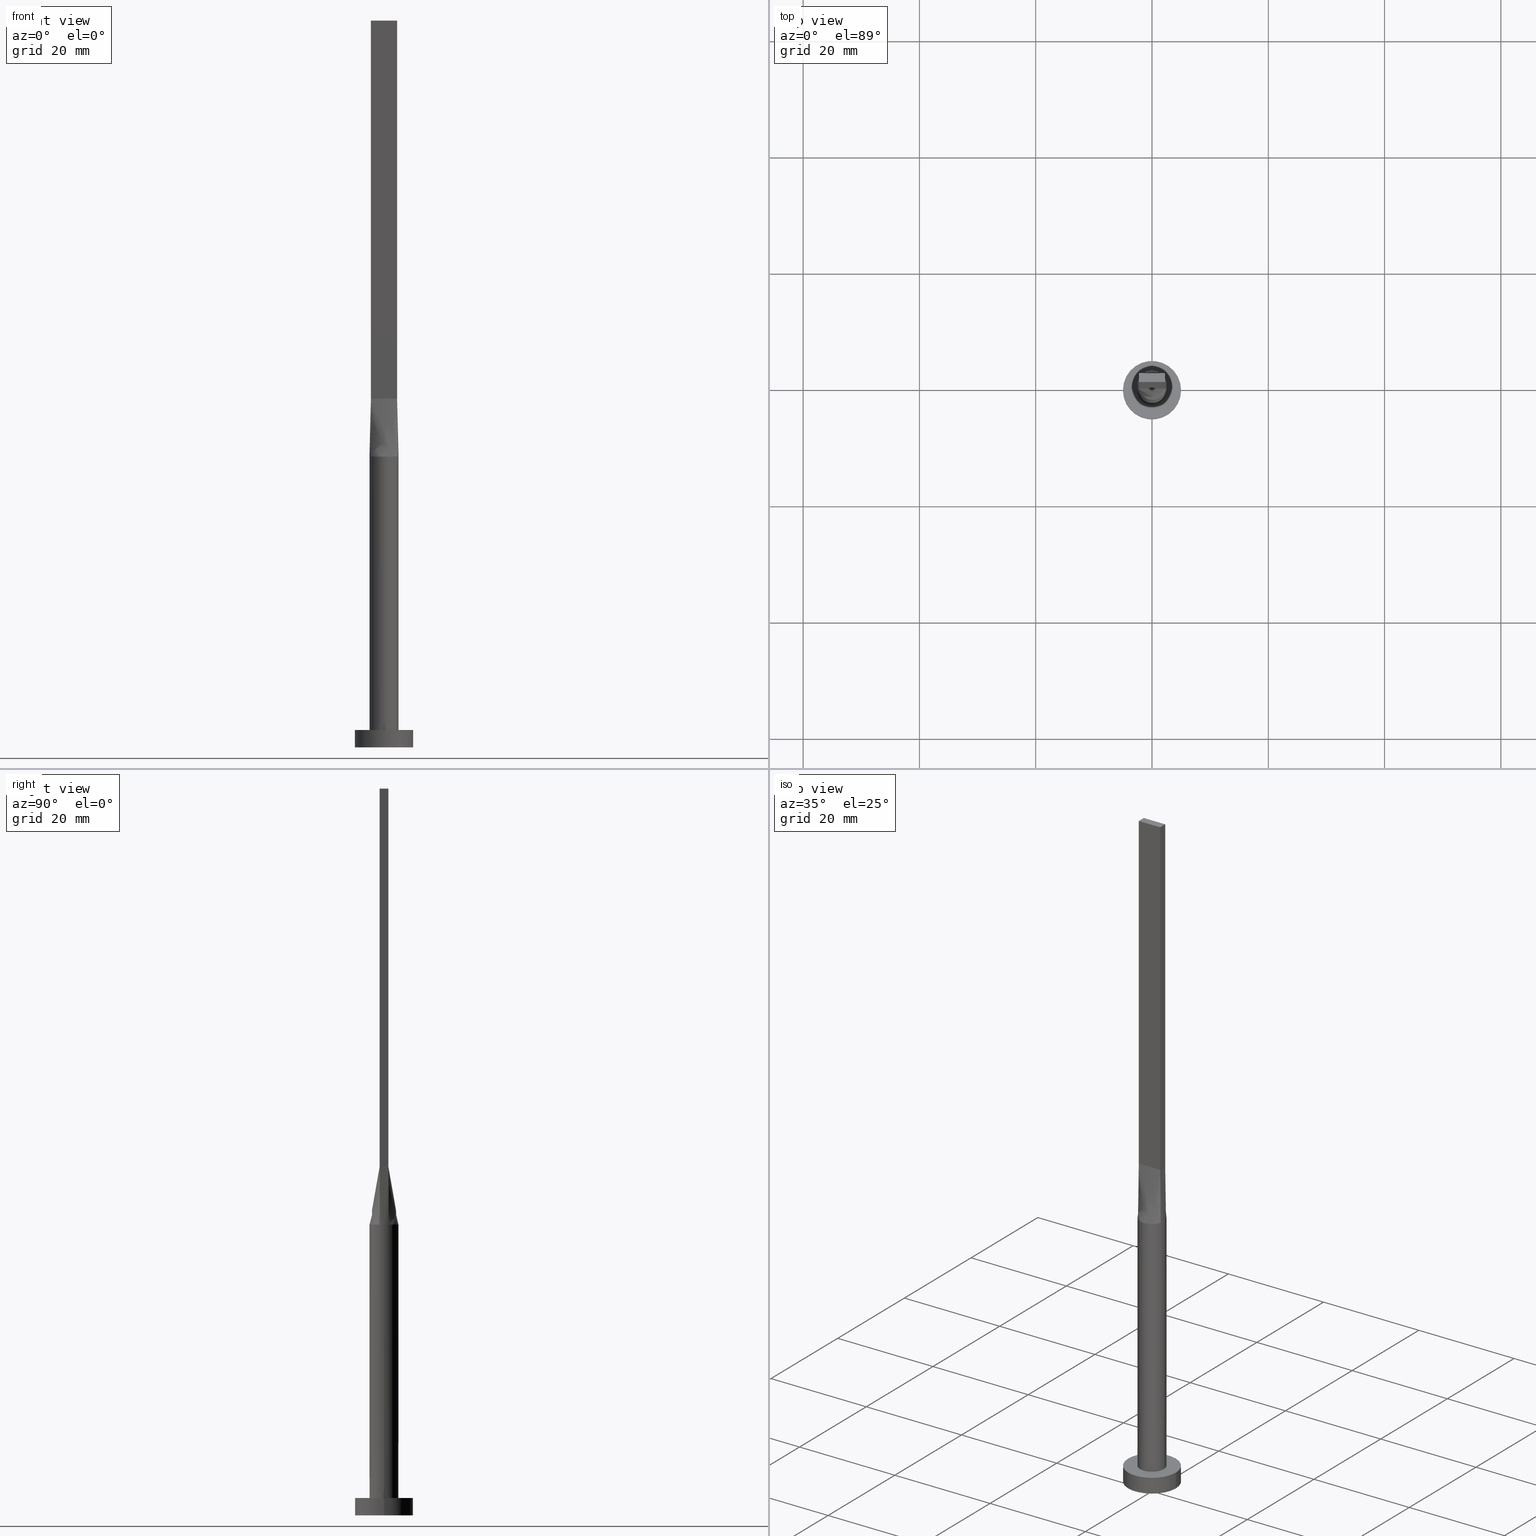
[diagram: canonical four-view strip — front | top / right | iso, engineering-drawing reading convention]
A machine part, canonical four-view strip (front | top / right | iso — engineering-drawing reading convention). The complete STEP part file that produces these views, byte-faithful:
ISO-10303-21;
HEADER;
FILE_DESCRIPTION (( 'STEP AP203' ),
    '1' );
FILE_NAME ('02ae.STEP',
    '2023-02-13T12:30:55',
    ( '' ),
    ( '' ),
    'SwSTEP 2.0',
    'SolidWorks 2019',
    '' );
FILE_SCHEMA (( 'CONFIG_CONTROL_DESIGN' ));
ENDSEC;

DATA;
#1 = CARTESIAN_POINT ( 'NONE',  ( -5.000000000000000000, 0.000000000000000000, 0.000000000000000000 ) ) ;
#2 = VERTEX_POINT ( 'NONE', #543 ) ;
#3 = EDGE_CURVE ( 'NONE', #574, #164, #257, .T. ) ;
#4 = LINE ( 'NONE', #175, #421 ) ;
#5 = APPROVAL_ROLE ( '' ) ;
#6 = ORIENTED_EDGE ( 'NONE', *, *, #256, .T. ) ;
#7 = LINE ( 'NONE', #396, #479 ) ;
#8 = CC_DESIGN_APPROVAL ( #503, ( #107 ) ) ;
#9 = PERSON_AND_ORGANIZATION ( #287, #526 ) ;
#10 = CARTESIAN_POINT ( 'NONE',  ( 2.310854122563142266, 0.7702847075210476069, 55.00000000000000711 ) ) ;
#11 = CARTESIAN_POINT ( 'NONE',  ( -2.371708245126284531, 0.7905694150420949917, 50.00000000000000000 ) ) ;
#12 = CALENDAR_DATE ( 2023, 13, 2 ) ;
#13 = CARTESIAN_POINT ( 'NONE',  ( 5.000000000000000000, 6.123233995736766282E-16, 0.000000000000000000 ) ) ;
#14 = CARTESIAN_POINT ( 'NONE',  ( 2.309208245126284087, -0.9780694150420953248, 49.99999999999999289 ) ) ;
#15 = CARTESIAN_POINT ( 'NONE',  ( 0.000000000000000000, 0.000000000000000000, 125.0000000000000000 ) ) ;
#16 = APPROVAL_STATUS ( 'not_yet_approved' ) ;
#17 = CARTESIAN_POINT ( 'NONE',  ( 0.3003163416900527238, 2.499999999999999556, 50.00000000000000711 ) ) ;
#18 = CARTESIAN_POINT ( 'NONE',  ( -2.218933079238281536, 1.174882007251999871, 50.00000000000000711 ) ) ;
#19 = CARTESIAN_POINT ( 'NONE',  ( 0.7500000000000065503, 0.7500000000000003331, 60.00000000000000000 ) ) ;
#20 = CC_DESIGN_DATE_AND_TIME_ASSIGNMENT ( #33, #535, ( #62 ) ) ;
#21 = CARTESIAN_POINT ( 'NONE',  ( 2.371708245126284531, 0.7905694150420949917, 50.00000000000000000 ) ) ;
#22 = B_SPLINE_SURFACE_WITH_KNOTS ( 'NONE', 3, 1, ( 
 ( #11, #176 ),
 ( #121, #351 ),
 ( #448, #89 ),
 ( #286, #37 ),
 ( #207, #577 ),
 ( #502, #341 ) ),
 .UNSPECIFIED., .F., .F., .F.,
 ( 4, 2, 4 ),
 ( 2, 2 ),
 ( 0.000000000000000000, 0.5000000000000000000, 1.000000000000000000 ),
 ( 0.000000000000000000, 1.000000000000000000 ),
 .UNSPECIFIED. ) ;
#23 = FACE_OUTER_BOUND ( 'NONE', #323, .T. ) ;
#24 = DIRECTION ( 'NONE',  ( -0.000000000000000000, -0.000000000000000000, -1.000000000000000000 ) ) ;
#25 = ORIENTED_EDGE ( 'NONE', *, *, #342, .T. ) ;
#26 = LINE ( 'NONE', #380, #170 ) ;
#27 = EDGE_LOOP ( 'NONE', ( #196, #340, #108, #202 ) ) ;
#28 = EDGE_CURVE ( 'NONE', #445, #2, #4, .T. ) ;
#29 = CARTESIAN_POINT ( 'NONE',  ( 2.499999999999999556, 3.110810548879990207E-17, 50.00000000000000000 ) ) ;
#30 = CARTESIAN_POINT ( 'NONE',  ( -2.310854122563142266, 0.7702847075210473848, 55.00000000000000711 ) ) ;
#31 = ORIENTED_EDGE ( 'NONE', *, *, #489, .T. ) ;
#32 = CARTESIAN_POINT ( 'NONE',  ( -2.249999999999999556, 0.7500000000000002220, 125.0000000000000000 ) ) ;
#33 = DATE_AND_TIME ( #550, #372 ) ;
#34 = VERTEX_POINT ( 'NONE', #13 ) ;
#35 = ORIENTED_EDGE ( 'NONE', *, *, #485, .T. ) ;
#36 = VECTOR ( 'NONE', #172, 1000.000000000000000 ) ;
#37 = CARTESIAN_POINT ( 'NONE',  ( -2.249999999999999556, -0.2499999999999963640, 60.00000000000000000 ) ) ;
#38 = AXIS2_PLACEMENT_3D ( 'NONE', #315, #69, #321 ) ;
#39 = ADVANCED_FACE ( 'NONE', ( #547 ), #301, .T. ) ;
#40 = ORIENTED_EDGE ( 'NONE', *, *, #305, .T. ) ;
#41 = ORIENTED_EDGE ( 'NONE', *, *, #572, .T. ) ;
#42 = DIRECTION ( 'NONE',  ( -1.000000000000000000, 0.000000000000000000, 0.000000000000000000 ) ) ;
#43 = ORIENTED_EDGE ( 'NONE', *, *, #28, .F. ) ;
#44 = DIRECTION ( 'NONE',  ( -0.01216982305197525371, -0.004056607683991732445, -0.9999177162851859979 ) ) ;
#45 = ORIENTED_EDGE ( 'NONE', *, *, #485, .F. ) ;
#46 = COORDINATED_UNIVERSAL_TIME_OFFSET ( 1, 0, .AHEAD. ) ;
#47 = SECURITY_CLASSIFICATION_LEVEL ( 'unclassified' ) ;
#48 = EDGE_CURVE ( 'NONE', #322, #169, #314, .T. ) ;
#49 = VERTEX_POINT ( 'NONE', #143 ) ;
#50 = FACE_OUTER_BOUND ( 'NONE', #385, .T. ) ;
#51 = PERSON_AND_ORGANIZATION_ROLE ( 'creator' ) ;
#52 = CALENDAR_DATE ( 2023, 13, 2 ) ;
#53 = VERTEX_POINT ( 'NONE', #527 ) ;
#54 = DIRECTION ( 'NONE',  ( 0.000000000000000000, 0.000000000000000000, 1.000000000000000000 ) ) ;
#55 = CARTESIAN_POINT ( 'NONE',  ( -0.3003163416900532234, -2.499999999999999556, 49.99999999999999289 ) ) ;
#56 = CARTESIAN_POINT ( 'NONE',  ( 1.145194483530141749, 2.241235424885160921, 50.00000000000000000 ) ) ;
#57 = VECTOR ( 'NONE', #204, 1000.000000000000114 ) ;
#58 = SECURITY_CLASSIFICATION ( '', '', #47 ) ;
#59 = AXIS2_PLACEMENT_3D ( 'NONE', #514, #263, #266 ) ;
#60 = CARTESIAN_POINT ( 'NONE',  ( 1.145194483530141083, -2.241235424885161365, 49.99999999999998579 ) ) ;
#61 = CARTESIAN_POINT ( 'NONE',  ( -2.309208245126284975, 0.9780694150420951027, 50.00000000000000711 ) ) ;
#62 = PRODUCT_DEFINITION ( 'NEZN�M�', '', #107, #353 ) ;
#63 = CARTESIAN_POINT ( 'NONE',  ( 1.145194483530141749, 2.241235424885160921, 50.00000000000000000 ) ) ;
#64 = CARTESIAN_POINT ( 'NONE',  ( 0.3003163416900518912, -2.500000000000001332, 50.00000000000000711 ) ) ;
#65 = FACE_OUTER_BOUND ( 'NONE', #218, .T. ) ;
#66 = CARTESIAN_POINT ( 'NONE',  ( 1.390086206340438890, -2.094828891646495883, 50.00000000000000711 ) ) ;
#67 = PERSON_AND_ORGANIZATION_ROLE ( 'classification_officer' ) ;
#68 = B_SPLINE_CURVE_WITH_KNOTS ( 'NONE', 3,
 ( #279, #229, #112, #116, #413, #178, #56, #554, #17, #187, #184, #368, #475, #418, #310, #18, #61, #557 ),
 .UNSPECIFIED., .F., .F.,
 ( 4, 2, 2, 2, 2, 2, 2, 2, 4 ),
 ( 0.000000000000000000, 0.1250000000000000000, 0.2500000000000000000, 0.3750000000000000000, 0.5000000000000000000, 0.6250000000000000000, 0.7500000000000000000, 0.8750000000000000000, 1.000000000000000000 ),
 .UNSPECIFIED. ) ;
#69 = DIRECTION ( 'NONE',  ( 1.000000000000000000, -2.891205793294678819E-16, 0.000000000000000000 ) ) ;
#70 = VERTEX_POINT ( 'NONE', #523 ) ;
#71 = PRODUCT_DEFINITION_SHAPE ( 'NONE', 'NONE',  #62 ) ;
#72 = CARTESIAN_POINT ( 'NONE',  ( -1.799471046981195199, 1.755719709239274229, 50.00000000000000711 ) ) ;
#73 = DIRECTION ( 'NONE',  ( -1.000000000000000000, 0.000000000000000000, 0.000000000000000000 ) ) ;
#74 = LINE ( 'NONE', #384, #84 ) ;
#75 = AXIS2_PLACEMENT_3D ( 'NONE', #408, #123, #457 ) ;
#76 = ORIENTED_EDGE ( 'NONE', *, *, #440, .T. ) ;
#77 = DIRECTION ( 'NONE',  ( 1.000000000000000000, 0.000000000000000000, 0.000000000000000000 ) ) ;
#78 = CARTESIAN_POINT ( 'NONE',  ( -2.250000000000000000, -0.7499999999999995559, 125.0000000000000000 ) ) ;
#79 =( NAMED_UNIT ( * ) PLANE_ANGLE_UNIT ( ) SI_UNIT ( $, .RADIAN. ) );
#80 = EDGE_CURVE ( 'NONE', #159, #578, #181, .T. ) ;
#81 = LINE ( 'NONE', #466, #291 ) ;
#82 = CIRCLE ( 'NONE', #407, 2.500000000000000000 ) ;
#83 = CARTESIAN_POINT ( 'NONE',  ( 2.249999999999999556, 0.7500000000000002220, 60.00000000000000711 ) ) ;
#84 = VECTOR ( 'NONE', #188, 1000.000000000000000 ) ;
#85 = EDGE_CURVE ( 'NONE', #49, #322, #444, .T. ) ;
#86 = DATE_AND_TIME ( #461, #423 ) ;
#87 = CARTESIAN_POINT ( 'NONE',  ( -2.062499999999999556, -0.7499999999999995559, 60.00000000000000711 ) ) ;
#88 = ORIENTED_EDGE ( 'NONE', *, *, #135, .F. ) ;
#89 = CARTESIAN_POINT ( 'NONE',  ( -2.249999999999999556, 0.2500000000000035527, 60.00000000000000000 ) ) ;
#90 = EDGE_CURVE ( 'NONE', #519, #320, #391, .T. ) ;
#91 = ORIENTED_EDGE ( 'NONE', *, *, #305, .F. ) ;
#92 = APPLICATION_PROTOCOL_DEFINITION ( 'international standard', 'config_control_design', 1994, #488 ) ;
#93 = ADVANCED_FACE ( 'NONE', ( #23 ), #194, .F. ) ;
#94 = CARTESIAN_POINT ( 'NONE',  ( 0.000000000000000000, 0.000000000000000000, 3.000000000000000000 ) ) ;
#95 = ORIENTED_EDGE ( 'NONE', *, *, #80, .T. ) ;
#96 = CARTESIAN_POINT ( 'NONE',  ( 2.250000000000000000, -0.7499999999999997780, 60.00000000000000711 ) ) ;
#97 = CARTESIAN_POINT ( 'NONE',  ( -0.6000386972366482663, 2.444291348568452094, 50.00000000000000000 ) ) ;
#98 = ORIENTED_EDGE ( 'NONE', *, *, #80, .F. ) ;
#99 = CARTESIAN_POINT ( 'NONE',  ( 0.000000000000000000, 0.000000000000000000, 50.00000000000000000 ) ) ;
#100 = DIRECTION ( 'NONE',  ( 0.000000000000000000, 0.000000000000000000, 1.000000000000000000 ) ) ;
#101 = CARTESIAN_POINT ( 'NONE',  ( 1.799471046981195199, -1.755719709239274229, 50.00000000000000711 ) ) ;
#102 = CARTESIAN_POINT ( 'NONE',  ( 0.000000000000000000, 0.000000000000000000, 0.000000000000000000 ) ) ;
#103 = ADVANCED_FACE ( 'NONE', ( #541 ), #546, .F. ) ;
#104 = DIRECTION ( 'NONE',  ( 0.000000000000000000, 0.000000000000000000, 1.000000000000000000 ) ) ;
#105 = ORIENTED_EDGE ( 'NONE', *, *, #90, .T. ) ;
#106 = CIRCLE ( 'NONE', #189, 2.500000000000000000 ) ;
#107 = PRODUCT_DEFINITION_FORMATION_WITH_SPECIFIED_SOURCE ( 'LIBOVOLN�', '', #148, .NOT_KNOWN. ) ;
#108 = ORIENTED_EDGE ( 'NONE', *, *, #440, .F. ) ;
#109 = CARTESIAN_POINT ( 'NONE',  ( 2.249999999999999556, 0.7500000000000002220, 125.0000000000000000 ) ) ;
#110 = CARTESIAN_POINT ( 'NONE',  ( 2.250000000000000000, -0.7499999999999997780, 125.0000000000000000 ) ) ;
#111 = CC_DESIGN_PERSON_AND_ORGANIZATION_ASSIGNMENT ( #173, #51, ( #62 ) ) ;
#112 = CARTESIAN_POINT ( 'NONE',  ( 2.218933079238281980, 1.174882007252000315, 50.00000000000000711 ) ) ;
#113 = DIRECTION ( 'NONE',  ( -0.000000000000000000, -0.000000000000000000, -1.000000000000000000 ) ) ;
#114 = CARTESIAN_POINT ( 'NONE',  ( 2.062500000000000444, 0.7500000000000002220, 60.00000000000000711 ) ) ;
#115 = CIRCLE ( 'NONE', #335, 2.500000000000000000 ) ;
#116 = CARTESIAN_POINT ( 'NONE',  ( 1.964343640889990361, 1.563766543189047287, 49.99999999999998579 ) ) ;
#117 = APPROVAL_STATUS ( 'not_yet_approved' ) ;
#118 = MANIFOLD_SOLID_BREP ( 'P�idat vysunut�m5', #258 ) ;
#119 = CARTESIAN_POINT ( 'NONE',  ( -2.062499999999998224, 0.7500000000000002220, 60.00000000000000000 ) ) ;
#120 = CARTESIAN_POINT ( 'NONE',  ( 1.875000000000001776, 0.7500000000000002220, 60.00000000000000711 ) ) ;
#121 = CARTESIAN_POINT ( 'NONE',  ( -2.455041578459617568, 0.5405694150420949917, 50.00000000000000711 ) ) ;
#122 = EDGE_LOOP ( 'NONE', ( #259, #329, #525, #480 ) ) ;
#123 = DIRECTION ( 'NONE',  ( 0.000000000000000000, 0.000000000000000000, 1.000000000000000000 ) ) ;
#124 = EDGE_LOOP ( 'NONE', ( #281, #462 ) ) ;
#125 = VECTOR ( 'NONE', #566, 1000.000000000000000 ) ;
#126 = EDGE_LOOP ( 'NONE', ( #253, #40, #41, #272 ) ) ;
#127 = CC_DESIGN_DATE_AND_TIME_ASSIGNMENT ( #86, #494, ( #58 ) ) ;
#128 = DIRECTION ( 'NONE',  ( 0.000000000000000000, -1.000000000000000000, 0.000000000000000000 ) ) ;
#129 = VERTEX_POINT ( 'NONE', #1 ) ;
#130 = CARTESIAN_POINT ( 'NONE',  ( 2.062499999999999556, -0.7499999999999997780, 60.00000000000000000 ) ) ;
#131 = CARTESIAN_POINT ( 'NONE',  ( -1.964343640889991249, -1.563766543189046843, 50.00000000000000711 ) ) ;
#132 = APPROVAL_PERSON_ORGANIZATION ( #470, #544, #220 ) ;
#133 = DIRECTION ( 'NONE',  ( 0.000000000000000000, 0.000000000000000000, 1.000000000000000000 ) ) ;
#134 = EDGE_LOOP ( 'NONE', ( #339, #465, #43, #31 ) ) ;
#135 = EDGE_CURVE ( 'NONE', #169, #392, #167, .T. ) ;
#136 = DIRECTION ( 'NONE',  ( -0.01216982305197521208, 0.004056607683991797497, 0.9999177162851859979 ) ) ;
#137 = APPROVAL ( #117, 'NEUR�EN�' ) ;
#138 = MECHANICAL_CONTEXT ( 'NONE', #369, 'mechanical' ) ;
#139 = ADVANCED_FACE ( 'NONE', ( #293 ), #215, .F. ) ;
#140 = FACE_OUTER_BOUND ( 'NONE', #563, .T. ) ;
#141 = DIRECTION ( 'NONE',  ( 0.000000000000000000, 0.000000000000000000, 1.000000000000000000 ) ) ;
#142 = APPLICATION_PROTOCOL_DEFINITION ( 'international standard', 'config_control_design', 1994, #369 ) ;
#143 = CARTESIAN_POINT ( 'NONE',  ( -2.371795432964766359, 0.7905989074952441964, 50.00000000000000000 ) ) ;
#144 = LINE ( 'NONE', #483, #357 ) ;
#145 = CARTESIAN_POINT ( 'NONE',  ( -0.1875000000000002498, -0.7499999999999995559, 60.00000000000000000 ) ) ;
#146 = EDGE_CURVE ( 'NONE', #415, #445, #505, .T. ) ;
#147 = CARTESIAN_POINT ( 'NONE',  ( 0.000000000000000000, 0.000000000000000000, 3.000000000000000000 ) ) ;
#148 = PRODUCT ( '02ae', '02ae', '', ( #138 ) ) ;
#149 = CARTESIAN_POINT ( 'NONE',  ( 2.250000000000000000, -0.7499999999999997780, 60.00000000000000711 ) ) ;
#150 = DIRECTION ( 'NONE',  ( 0.000000000000000000, 0.000000000000000000, 1.000000000000000000 ) ) ;
#151 = ORIENTED_EDGE ( 'NONE', *, *, #300, .F. ) ;
#152 = ADVANCED_FACE ( 'NONE', ( #50 ), #22, .T. ) ;
#153 = CARTESIAN_POINT ( 'NONE',  ( 2.371772892450305648, 0.7905912578404317159, 50.00000000000000000 ) ) ;
#154 = CARTESIAN_POINT ( 'NONE',  ( 2.499999999999999112, 0.2704627669472988161, 49.99999999999999289 ) ) ;
#155 = ORIENTED_EDGE ( 'NONE', *, *, #404, .F. ) ;
#156 = EDGE_CURVE ( 'NONE', #578, #574, #82, .T. ) ;
#157 = DIRECTION ( 'NONE',  ( -0.000000000000000000, -0.000000000000000000, -1.000000000000000000 ) ) ;
#158 = DATE_AND_TIME ( #409, #252 ) ;
#159 = VERTEX_POINT ( 'NONE', #495 ) ;
#160 = AXIS2_PLACEMENT_3D ( 'NONE', #94, #306, #511 ) ;
#161 = CARTESIAN_POINT ( 'NONE',  ( 2.249999999999999556, 0.7500000000000002220, 60.00000000000000711 ) ) ;
#162 = CIRCLE ( 'NONE', #509, 5.000000000000000000 ) ;
#163 = APPROVAL_DATE_TIME ( #158, #503 ) ;
#164 = VERTEX_POINT ( 'NONE', #83 ) ;
#165 = CARTESIAN_POINT ( 'NONE',  ( -2.249999999999999556, 0.7500000000000002220, 125.0000000000000000 ) ) ;
#166 = LINE ( 'NONE', #32, #452 ) ;
#167 = LINE ( 'NONE', #410, #36 ) ;
#168 = CARTESIAN_POINT ( 'NONE',  ( -0.7499999999999998890, -0.7499999999999995559, 60.00000000000000000 ) ) ;
#169 = VERTEX_POINT ( 'NONE', #222 ) ;
#170 = VECTOR ( 'NONE', #346, 1000.000000000000000 ) ;
#171 = ORIENTED_EDGE ( 'NONE', *, *, #28, .T. ) ;
#172 = DIRECTION ( 'NONE',  ( 1.000000000000000000, -4.818676322157797621E-17, 0.000000000000000000 ) ) ;
#173 = PERSON_AND_ORGANIZATION ( #287, #526 ) ;
#174 = COORDINATED_UNIVERSAL_TIME_OFFSET ( 1, 0, .AHEAD. ) ;
#175 = CARTESIAN_POINT ( 'NONE',  ( -2.249999999999999556, 0.7500000000000002220, 125.0000000000000000 ) ) ;
#176 = CARTESIAN_POINT ( 'NONE',  ( -2.249999999999999556, 0.7500000000000002220, 60.00000000000000711 ) ) ;
#177 = COORDINATED_UNIVERSAL_TIME_OFFSET ( 1, 0, .AHEAD. ) ;
#178 = CARTESIAN_POINT ( 'NONE',  ( 1.390086206340439112, 2.094828891646494995, 50.00000000000000711 ) ) ;
#179 = DIRECTION ( 'NONE',  ( 1.000000000000000000, 0.000000000000000000, 0.000000000000000000 ) ) ;
#180 = EDGE_LOOP ( 'NONE', ( #520, #508 ) ) ;
#181 = CIRCLE ( 'NONE', #560, 2.500000000000000000 ) ;
#182 = VECTOR ( 'NONE', #438, 1000.000000000000000 ) ;
#183 = PERSON_AND_ORGANIZATION_ROLE ( 'creator' ) ;
#184 = CARTESIAN_POINT ( 'NONE',  ( -0.6000386972366482663, 2.444291348568452094, 50.00000000000000000 ) ) ;
#185 = CARTESIAN_POINT ( 'NONE',  ( 0.9374999999999997780, -0.7499999999999996669, 60.00000000000000000 ) ) ;
#186 = EDGE_CURVE ( 'NONE', #129, #34, #217, .T. ) ;
#187 = CARTESIAN_POINT ( 'NONE',  ( -0.3003163416900526128, 2.499999999999999112, 49.99999999999999289 ) ) ;
#188 = DIRECTION ( 'NONE',  ( -0.000000000000000000, -0.000000000000000000, -1.000000000000000000 ) ) ;
#189 = AXIS2_PLACEMENT_3D ( 'NONE', #484, #330, #77 ) ;
#190 = LOCAL_TIME ( 13, 30, 55.00000000000000000, #174 ) ;
#191 = CARTESIAN_POINT ( 'NONE',  ( 2.250000000000000000, -0.7499999999999997780, 60.00000000000000711 ) ) ;
#192 = CARTESIAN_POINT ( 'NONE',  ( 0.1875000000000074385, 0.7500000000000003331, 60.00000000000000000 ) ) ;
#193 = PERSON_AND_ORGANIZATION ( #287, #526 ) ;
#194 = PLANE ( 'NONE',  #239 ) ;
#195 = LINE ( 'NONE', #524, #182 ) ;
#196 = ORIENTED_EDGE ( 'NONE', *, *, #300, .T. ) ;
#197 = CARTESIAN_POINT ( 'NONE',  ( 2.249999999999999556, 0.2499999999999996669, 60.00000000000000000 ) ) ;
#198 = ORIENTED_EDGE ( 'NONE', *, *, #296, .T. ) ;
#199 = CARTESIAN_POINT ( 'NONE',  ( -1.964343640889990805, 1.563766543189048175, 50.00000000000000711 ) ) ;
#200 = ADVANCED_FACE ( 'NONE', ( #362 ), #358, .T. ) ;
#201 = ORIENTED_EDGE ( 'NONE', *, *, #146, .F. ) ;
#202 = ORIENTED_EDGE ( 'NONE', *, *, #282, .T. ) ;
#203 = CARTESIAN_POINT ( 'NONE',  ( -2.500000000000000444, -1.570839010700814298E-16, 50.00000000000000000 ) ) ;
#204 = DIRECTION ( 'NONE',  ( 0.01216982305197525371, -0.004056607683991667393, 0.9999177162851859979 ) ) ;
#205 = CC_DESIGN_PERSON_AND_ORGANIZATION_ASSIGNMENT ( #416, #538, ( #107 ) ) ;
#206 = VECTOR ( 'NONE', #24, 1000.000000000000000 ) ;
#207 = CARTESIAN_POINT ( 'NONE',  ( -2.455041578459618012, -0.5405694150420945476, 50.00000000000000711 ) ) ;
#208 = CC_DESIGN_SECURITY_CLASSIFICATION ( #58, ( #107 ) ) ;
#209 = CARTESIAN_POINT ( 'NONE',  ( -1.390086206340439334, -2.094828891646495883, 50.00000000000000711 ) ) ;
#210 = PLANE ( 'NONE',  #75 ) ;
#211 = ORIENTED_EDGE ( 'NONE', *, *, #447, .T. ) ;
#212 = CARTESIAN_POINT ( 'NONE',  ( -2.371775648085652222, -0.7905922034696525325, 50.00000000000000000 ) ) ;
#213 = DIRECTION ( 'NONE',  ( 0.000000000000000000, 0.000000000000000000, 1.000000000000000000 ) ) ;
#214 = ORIENTED_EDGE ( 'NONE', *, *, #248, .T. ) ;
#215 = PLANE ( 'NONE',  #356 ) ;
#216 = CARTESIAN_POINT ( 'NONE',  ( -2.371708245126284975, -0.7905694150420944366, 50.00000000000000000 ) ) ;
#217 = CIRCLE ( 'NONE', #250, 5.000000000000000000 ) ;
#218 = EDGE_LOOP ( 'NONE', ( #95, #565, #430, #151, #365 ) ) ;
#219 = ORIENTED_EDGE ( 'NONE', *, *, #447, .F. ) ;
#220 = APPROVAL_ROLE ( '' ) ;
#221 = CARTESIAN_POINT ( 'NONE',  ( 1.799471046981194977, 1.755719709239274007, 50.00000000000000711 ) ) ;
#222 = CARTESIAN_POINT ( 'NONE',  ( -2.250000000000000000, -0.7499999999999995559, 60.00000000000000711 ) ) ;
#223 = CARTESIAN_POINT ( 'NONE',  ( 0.6000386972366480443, 2.444291348568451649, 50.00000000000000711 ) ) ;
#224 = CARTESIAN_POINT ( 'NONE',  ( -0.3003163416900526128, 2.499999999999999112, 49.99999999999999289 ) ) ;
#225 = LINE ( 'NONE', #308, #427 ) ;
#226 = CARTESIAN_POINT ( 'NONE',  ( -0.3749999999999925060, 0.7500000000000003331, 60.00000000000000000 ) ) ;
#227 = EDGE_CURVE ( 'NONE', #49, #519, #115, .T. ) ;
#228 = CARTESIAN_POINT ( 'NONE',  ( 2.371708245126284531, -0.7905694150420953248, 50.00000000000000000 ) ) ;
#229 = CARTESIAN_POINT ( 'NONE',  ( 2.309208245126284975, 0.9780694150420948807, 50.00000000000000711 ) ) ;
#230 = CIRCLE ( 'NONE', #468, 2.500000000000000000 ) ;
#231 = DIRECTION ( 'NONE',  ( 1.000000000000000000, 0.000000000000000000, 0.000000000000000000 ) ) ;
#232 = CARTESIAN_POINT ( 'NONE',  ( -2.500000000000000000, 0.000000000000000000, 3.000000000000000000 ) ) ;
#233 = B_SPLINE_SURFACE_WITH_KNOTS ( 'NONE', 3, 1, ( 
 ( #332, #161 ),
 ( #531, #114 ),
 ( #533, #120 ),
 ( #493, #249 ),
 ( #221, #428 ),
 ( #371, #313 ),
 ( #63, #19 ),
 ( #223, #419 ),
 ( #359, #192 ),
 ( #224, #364 ),
 ( #97, #226 ),
 ( #424, #482 ),
 ( #437, #441 ),
 ( #72, #325 ),
 ( #199, #327 ),
 ( #383, #529 ),
 ( #334, #119 ),
 ( #492, #474 ) ),
 .UNSPECIFIED., .F., .F., .F.,
 ( 4, 2, 2, 2, 2, 2, 2, 2, 4 ),
 ( 2, 2 ),
 ( 0.000000000000000000, 0.1250000000000000000, 0.2500000000000000000, 0.3750000000000000000, 0.5000000000000000000, 0.6250000000000000000, 0.7500000000000000000, 0.8750000000000000000, 1.000000000000000000 ),
 ( 0.000000000000000000, 1.000000000000000000 ),
 .UNSPECIFIED. ) ;
#234 = CARTESIAN_POINT ( 'NONE',  ( 0.000000000000000000, 0.000000000000000000, 0.000000000000000000 ) ) ;
#235 = CARTESIAN_POINT ( 'NONE',  ( 0.000000000000000000, 0.000000000000000000, 50.00000000000000000 ) ) ;
#236 = CARTESIAN_POINT ( 'NONE',  ( 2.455041578459617568, 0.5405694150420948807, 50.00000000000000711 ) ) ;
#237 = CC_DESIGN_PERSON_AND_ORGANIZATION_ASSIGNMENT ( #9, #67, ( #58 ) ) ;
#238 = ORIENTED_EDGE ( 'NONE', *, *, #186, .T. ) ;
#239 = AXIS2_PLACEMENT_3D ( 'NONE', #376, #458, #414 ) ;
#240 =( LENGTH_UNIT ( ) NAMED_UNIT ( * ) SI_UNIT ( .MILLI., .METRE. ) );
#241 = DIRECTION ( 'NONE',  ( -1.000000000000000000, 0.000000000000000000, 0.000000000000000000 ) ) ;
#242 = CARTESIAN_POINT ( 'NONE',  ( -2.250000000000000000, -0.7499999999999995559, 125.0000000000000000 ) ) ;
#243 = VERTEX_POINT ( 'NONE', #555 ) ;
#244 = CYLINDRICAL_SURFACE ( 'NONE', #312, 2.500000000000000000 ) ;
#245 = CARTESIAN_POINT ( 'NONE',  ( 2.499999999999999556, -0.2704627669472993157, 50.00000000000000711 ) ) ;
#246 = LINE ( 'NONE', #581, #575 ) ;
#247 = ORIENTED_EDGE ( 'NONE', *, *, #489, .F. ) ;
#248 = EDGE_CURVE ( 'NONE', #159, #392, #225, .T. ) ;
#249 = CARTESIAN_POINT ( 'NONE',  ( 1.500000000000003775, 0.7500000000000002220, 60.00000000000000000 ) ) ;
#250 = AXIS2_PLACEMENT_3D ( 'NONE', #102, #311, #179 ) ;
#251 = CARTESIAN_POINT ( 'NONE',  ( 0.000000000000000000, 0.000000000000000000, 50.00000000000000000 ) ) ;
#252 = LOCAL_TIME ( 13, 30, 55.00000000000000000, #46 ) ;
#253 = ORIENTED_EDGE ( 'NONE', *, *, #256, .F. ) ;
#254 = ORIENTED_EDGE ( 'NONE', *, *, #85, .F. ) ;
#255 = APPROVAL_ROLE ( '' ) ;
#256 = EDGE_CURVE ( 'NONE', #53, #243, #162, .T. ) ;
#257 = LINE ( 'NONE', #10, #290 ) ;
#258 = CLOSED_SHELL ( 'NONE', ( #200, #276, #39, #534, #425, #363, #347, #269, #152, #532, #103, #317, #93, #139, #569 ) ) ;
#259 = ORIENTED_EDGE ( 'NONE', *, *, #556, .T. ) ;
#260 = CARTESIAN_POINT ( 'NONE',  ( -2.309208245126285419, -0.9780694150420946587, 50.00000000000002132 ) ) ;
#261 = CARTESIAN_POINT ( 'NONE',  ( 2.455041578459617568, -0.5405694150420953248, 50.00000000000000711 ) ) ;
#262 = APPROVAL_DATE_TIME ( #510, #544 ) ;
#263 = DIRECTION ( 'NONE',  ( 0.000000000000000000, 0.000000000000000000, 1.000000000000000000 ) ) ;
#264 = DIRECTION ( 'NONE',  ( -2.891205793294678819E-16, -1.000000000000000000, 0.000000000000000000 ) ) ;
#265 = CARTESIAN_POINT ( 'NONE',  ( 1.312499999999999778, -0.7499999999999997780, 60.00000000000000000 ) ) ;
#266 = DIRECTION ( 'NONE',  ( 1.000000000000000000, 0.000000000000000000, 0.000000000000000000 ) ) ;
#267 = AXIS2_PLACEMENT_3D ( 'NONE', #386, #500, #390 ) ;
#268 = UNCERTAINTY_MEASURE_WITH_UNIT (LENGTH_MEASURE( 1.000000000000000082E-05 ), #240, 'distance_accuracy_value', 'NONE');
#269 = ADVANCED_FACE ( 'NONE', ( #65 ), #434, .T. ) ;
#270 = DIRECTION ( 'NONE',  ( 1.000000000000000000, 0.000000000000000000, 0.000000000000000000 ) ) ;
#271 = CARTESIAN_POINT ( 'NONE',  ( 2.249999999999999556, 0.7500000000000002220, 60.00000000000000711 ) ) ;
#272 = ORIENTED_EDGE ( 'NONE', *, *, #342, .F. ) ;
#273 = CARTESIAN_POINT ( 'NONE',  ( 0.6000386972366476002, -2.444291348568452538, 50.00000000000000000 ) ) ;
#274 = CARTESIAN_POINT ( 'NONE',  ( -2.500000000000000000, 0.000000000000000000, 50.00000000000000000 ) ) ;
#275 = VECTOR ( 'NONE', #264, 1000.000000000000000 ) ;
#276 = ADVANCED_FACE ( 'NONE', ( #326 ), #432, .T. ) ;
#277 = CIRCLE ( 'NONE', #59, 5.000000000000000000 ) ;
#278 = DIRECTION ( 'NONE',  ( -0.000000000000000000, -0.000000000000000000, -1.000000000000000000 ) ) ;
#279 = CARTESIAN_POINT ( 'NONE',  ( 2.371772892450305648, 0.7905912578404317159, 50.00000000000000000 ) ) ;
#280 = DIRECTION ( 'NONE',  ( 1.000000000000000000, 0.000000000000000000, 0.000000000000000000 ) ) ;
#281 = ORIENTED_EDGE ( 'NONE', *, *, #309, .F. ) ;
#282 = EDGE_CURVE ( 'NONE', #70, #392, #567, .T. ) ;
#283 = CIRCLE ( 'NONE', #267, 2.500000000000000000 ) ;
#284 = CARTESIAN_POINT ( 'NONE',  ( 2.500000000000000000, 3.061616997868383141E-16, 3.000000000000000000 ) ) ;
#285 = DIRECTION ( 'NONE',  ( -0.000000000000000000, -0.000000000000000000, -1.000000000000000000 ) ) ;
#286 = CARTESIAN_POINT ( 'NONE',  ( -2.500000000000000888, -0.2704627669472985385, 49.99999999999999289 ) ) ;
#287 = PERSON ( 'NEUR�EN�', 'NEUR�EN�', 'NEUR�EN�', ('NEUR�EN�'), ('NEUR�EN�'), ('NEUR�EN�') ) ;
#288 = DIRECTION ( 'NONE',  ( 1.000000000000000000, 0.000000000000000000, -0.000000000000000000 ) ) ;
#289 = DIRECTION ( 'NONE',  ( 0.000000000000000000, 0.000000000000000000, 1.000000000000000000 ) ) ;
#290 = VECTOR ( 'NONE', #411, 1000.000000000000114 ) ;
#291 = VECTOR ( 'NONE', #44, 1000.000000000000114 ) ;
#292 =( GEOMETRIC_REPRESENTATION_CONTEXT ( 3 ) GLOBAL_UNCERTAINTY_ASSIGNED_CONTEXT ( ( #268 ) ) GLOBAL_UNIT_ASSIGNED_CONTEXT ( ( #240, #79, #435 ) ) REPRESENTATION_CONTEXT ( 'NONE', 'WORKASPACE' ) );
#293 = FACE_OUTER_BOUND ( 'NONE', #27, .T. ) ;
#294 = AXIS2_PLACEMENT_3D ( 'NONE', #15, #133, #307 ) ;
#295 = ORIENTED_EDGE ( 'NONE', *, *, #227, .F. ) ;
#296 = EDGE_CURVE ( 'NONE', #513, #320, #230, .T. ) ;
#297 = CARTESIAN_POINT ( 'NONE',  ( 2.250000000000000000, -0.7499999999999997780, 125.0000000000000000 ) ) ;
#298 = ORIENTED_EDGE ( 'NONE', *, *, #476, .T. ) ;
#299 = DIRECTION ( 'NONE',  ( 0.000000000000000000, -0.000000000000000000, -1.000000000000000000 ) ) ;
#300 = EDGE_CURVE ( 'NONE', #392, #164, #144, .T. ) ;
#301 = CYLINDRICAL_SURFACE ( 'NONE', #160, 5.000000000000000000 ) ;
#302 = FACE_OUTER_BOUND ( 'NONE', #446, .T. ) ;
#303 = ORIENTED_EDGE ( 'NONE', *, *, #549, .T. ) ;
#304 = DATE_AND_TIME ( #52, #190 ) ;
#305 = EDGE_CURVE ( 'NONE', #53, #34, #74, .T. ) ;
#306 = DIRECTION ( 'NONE',  ( -0.000000000000000000, -0.000000000000000000, -1.000000000000000000 ) ) ;
#307 = DIRECTION ( 'NONE',  ( 1.000000000000000000, 0.000000000000000000, -0.000000000000000000 ) ) ;
#308 = CARTESIAN_POINT ( 'NONE',  ( 2.310854122563142266, -0.7702847075210476069, 55.00000000000000711 ) ) ;
#309 = EDGE_CURVE ( 'NONE', #320, #513, #345, .T. ) ;
#310 = CARTESIAN_POINT ( 'NONE',  ( -1.964343640889990805, 1.563766543189048175, 50.00000000000000711 ) ) ;
#311 = DIRECTION ( 'NONE',  ( 0.000000000000000000, 0.000000000000000000, 1.000000000000000000 ) ) ;
#312 = AXIS2_PLACEMENT_3D ( 'NONE', #530, #113, #241 ) ;
#313 = CARTESIAN_POINT ( 'NONE',  ( 0.9375000000000059952, 0.7500000000000003331, 60.00000000000000000 ) ) ;
#314 = LINE ( 'NONE', #515, #275 ) ;
#315 = CARTESIAN_POINT ( 'NONE',  ( -2.249999999999999556, 0.7500000000000002220, 125.0000000000000000 ) ) ;
#316 = CARTESIAN_POINT ( 'NONE',  ( 0.1874999999999995559, -0.7499999999999995559, 60.00000000000000000 ) ) ;
#317 = ADVANCED_FACE ( 'NONE', ( #528 ), #478, .F. ) ;
#318 = DIRECTION ( 'NONE',  ( 1.000000000000000000, 0.000000000000000000, 0.000000000000000000 ) ) ;
#319 = ORIENTED_EDGE ( 'NONE', *, *, #422, .F. ) ;
#320 = VERTEX_POINT ( 'NONE', #232 ) ;
#321 = DIRECTION ( 'NONE',  ( 2.891205793294678819E-16, 1.000000000000000000, 0.000000000000000000 ) ) ;
#322 = VERTEX_POINT ( 'NONE', #377 ) ;
#323 = EDGE_LOOP ( 'NONE', ( #388, #394, #343, #336 ) ) ;
#324 = CARTESIAN_POINT ( 'NONE',  ( 1.874999999999999556, -0.7499999999999997780, 60.00000000000000000 ) ) ;
#325 = CARTESIAN_POINT ( 'NONE',  ( -1.312499999999994671, 0.7500000000000002220, 60.00000000000000000 ) ) ;
#326 = FACE_OUTER_BOUND ( 'NONE', #126, .T. ) ;
#327 = CARTESIAN_POINT ( 'NONE',  ( -1.499999999999995559, 0.7500000000000002220, 60.00000000000000000 ) ) ;
#328 = DIRECTION ( 'NONE',  ( 0.000000000000000000, 0.000000000000000000, 1.000000000000000000 ) ) ;
#329 = ORIENTED_EDGE ( 'NONE', *, *, #85, .T. ) ;
#330 = DIRECTION ( 'NONE',  ( 0.000000000000000000, 0.000000000000000000, 1.000000000000000000 ) ) ;
#331 = EDGE_CURVE ( 'NONE', #164, #322, #195, .T. ) ;
#332 = CARTESIAN_POINT ( 'NONE',  ( 2.371708245126284531, 0.7905694150420949917, 50.00000000000000000 ) ) ;
#333 = ORIENTED_EDGE ( 'NONE', *, *, #331, .T. ) ;
#334 = CARTESIAN_POINT ( 'NONE',  ( -2.309208245126284975, 0.9780694150420951027, 50.00000000000000711 ) ) ;
#335 = AXIS2_PLACEMENT_3D ( 'NONE', #99, #100, #558 ) ;
#336 = ORIENTED_EDGE ( 'NONE', *, *, #459, .T. ) ;
#337 = LINE ( 'NONE', #242, #553 ) ;
#338 = PERSON_AND_ORGANIZATION ( #287, #526 ) ;
#339 = ORIENTED_EDGE ( 'NONE', *, *, #48, .T. ) ;
#340 = ORIENTED_EDGE ( 'NONE', *, *, #549, .F. ) ;
#341 = CARTESIAN_POINT ( 'NONE',  ( -2.250000000000000000, -0.7499999999999995559, 60.00000000000000711 ) ) ;
#342 = EDGE_CURVE ( 'NONE', #243, #129, #26, .T. ) ;
#343 = ORIENTED_EDGE ( 'NONE', *, *, #476, .F. ) ;
#344 = CARTESIAN_POINT ( 'NONE',  ( -0.6000386972366480443, -2.444291348568451649, 49.99999999999998579 ) ) ;
#345 = CIRCLE ( 'NONE', #498, 2.500000000000000000 ) ;
#346 = DIRECTION ( 'NONE',  ( -0.000000000000000000, -0.000000000000000000, -1.000000000000000000 ) ) ;
#347 = ADVANCED_FACE ( 'NONE', ( #302 ), #379, .T. ) ;
#348 = APPROVAL_DATE_TIME ( #304, #137 ) ;
#349 = COORDINATED_UNIVERSAL_TIME_OFFSET ( 1, 0, .AHEAD. ) ;
#350 = DIRECTION ( 'NONE',  ( -2.891205793294678819E-16, -1.000000000000000000, 0.000000000000000000 ) ) ;
#351 = CARTESIAN_POINT ( 'NONE',  ( -2.249999999999999556, 0.5000000000000024425, 60.00000000000000000 ) ) ;
#352 = ORIENTED_EDGE ( 'NONE', *, *, #422, .T. ) ;
#353 = DESIGN_CONTEXT ( 'detailed design', #488, 'design' ) ;
#354 = CARTESIAN_POINT ( 'NONE',  ( 2.371708245126284531, -0.7905694150420953248, 50.00000000000000000 ) ) ;
#355 = CARTESIAN_POINT ( 'NONE',  ( -1.874999999999999556, -0.7499999999999995559, 60.00000000000000711 ) ) ;
#356 = AXIS2_PLACEMENT_3D ( 'NONE', #297, #504, #464 ) ;
#357 = VECTOR ( 'NONE', #486, 1000.000000000000000 ) ;
#358 = CYLINDRICAL_SURFACE ( 'NONE', #477, 2.500000000000000000 ) ;
#359 = CARTESIAN_POINT ( 'NONE',  ( 0.3003163416900527238, 2.499999999999999556, 50.00000000000000711 ) ) ;
#360 = AXIS2_PLACEMENT_3D ( 'NONE', #234, #559, #231 ) ;
#361 = CARTESIAN_POINT ( 'NONE',  ( 0.3749999999999995559, -0.7499999999999995559, 60.00000000000000000 ) ) ;
#362 = FACE_OUTER_BOUND ( 'NONE', #433, .T. ) ;
#363 = ADVANCED_FACE ( 'NONE', ( #389 ), #244, .T. ) ;
#364 = CARTESIAN_POINT ( 'NONE',  ( -0.1874999999999924782, 0.7500000000000003331, 60.00000000000000000 ) ) ;
#365 = ORIENTED_EDGE ( 'NONE', *, *, #248, .F. ) ;
#366 = CARTESIAN_POINT ( 'NONE',  ( -0.3750000000000001110, -0.7499999999999995559, 60.00000000000000000 ) ) ;
#367 = CC_DESIGN_PERSON_AND_ORGANIZATION_ASSIGNMENT ( #193, #374, ( #148 ) ) ;
#368 = CARTESIAN_POINT ( 'NONE',  ( -1.145194483530141527, 2.241235424885160921, 49.99999999999999289 ) ) ;
#369 = APPLICATION_CONTEXT ( 'configuration controlled 3d designs of mechanical parts and assemblies' ) ;
#370 = CARTESIAN_POINT ( 'NONE',  ( 0.000000000000000000, 0.000000000000000000, 3.000000000000000000 ) ) ;
#371 = CARTESIAN_POINT ( 'NONE',  ( 1.390086206340439112, 2.094828891646494995, 50.00000000000000711 ) ) ;
#372 = LOCAL_TIME ( 13, 30, 55.00000000000000000, #177 ) ;
#373 = EDGE_CURVE ( 'NONE', #519, #472, #106, .T. ) ;
#374 = PERSON_AND_ORGANIZATION_ROLE ( 'design_owner' ) ;
#375 = ORIENTED_EDGE ( 'NONE', *, *, #404, .T. ) ;
#376 = CARTESIAN_POINT ( 'NONE',  ( -2.250000000000000000, -0.7499999999999995559, 125.0000000000000000 ) ) ;
#377 = CARTESIAN_POINT ( 'NONE',  ( -2.249999999999999556, 0.7500000000000002220, 60.00000000000000711 ) ) ;
#378 = LINE ( 'NONE', #109, #125 ) ;
#379 = B_SPLINE_SURFACE_WITH_KNOTS ( 'NONE', 3, 1, ( 
 ( #216, #506 ),
 ( #260, #87 ),
 ( #536, #355 ),
 ( #131, #512 ),
 ( #450, #406 ),
 ( #209, #456 ),
 ( #402, #168 ),
 ( #344, #366 ),
 ( #55, #145 ),
 ( #64, #316 ),
 ( #273, #361 ),
 ( #60, #473 ),
 ( #66, #185 ),
 ( #101, #265 ),
 ( #436, #420 ),
 ( #516, #324 ),
 ( #14, #130 ),
 ( #354, #96 ) ),
 .UNSPECIFIED., .F., .F., .F.,
 ( 4, 2, 2, 2, 2, 2, 2, 2, 4 ),
 ( 2, 2 ),
 ( 0.000000000000000000, 0.1250000000000000555, 0.2500000000000001110, 0.3750000000000001110, 0.5000000000000001110, 0.6250000000000000000, 0.7500000000000000000, 0.8749999999999998890, 1.000000000000000000 ),
 ( 0.000000000000000000, 1.000000000000000000 ),
 .UNSPECIFIED. ) ;
#380 = CARTESIAN_POINT ( 'NONE',  ( -5.000000000000000000, 0.000000000000000000, 3.000000000000000000 ) ) ;
#381 = AXIS2_PLACEMENT_3D ( 'NONE', #497, #213, #288 ) ;
#382 = LOCAL_TIME ( 13, 30, 55.00000000000000000, #349 ) ;
#383 = CARTESIAN_POINT ( 'NONE',  ( -2.218933079238281536, 1.174882007251999871, 50.00000000000000711 ) ) ;
#384 = CARTESIAN_POINT ( 'NONE',  ( 5.000000000000000000, 6.123233995736766282E-16, 3.000000000000000000 ) ) ;
#385 = EDGE_LOOP ( 'NONE', ( #552, #496, #319, #571, #254 ) ) ;
#386 = CARTESIAN_POINT ( 'NONE',  ( 0.000000000000000000, 0.000000000000000000, 50.00000000000000000 ) ) ;
#387 = EDGE_LOOP ( 'NONE', ( #333, #247, #201, #303 ) ) ;
#388 = ORIENTED_EDGE ( 'NONE', *, *, #135, .T. ) ;
#389 = FACE_OUTER_BOUND ( 'NONE', #467, .T. ) ;
#390 = DIRECTION ( 'NONE',  ( 1.000000000000000000, 0.000000000000000000, 0.000000000000000000 ) ) ;
#391 = LINE ( 'NONE', #274, #507 ) ;
#392 = VERTEX_POINT ( 'NONE', #149 ) ;
#393 = CC_DESIGN_APPROVAL ( #544, ( #62 ) ) ;
#394 = ORIENTED_EDGE ( 'NONE', *, *, #282, .F. ) ;
#395 = PERSON_AND_ORGANIZATION ( #287, #526 ) ;
#396 = CARTESIAN_POINT ( 'NONE',  ( 2.250000000000000000, -0.7499999999999997780, 125.0000000000000000 ) ) ;
#397 = DIRECTION ( 'NONE',  ( 1.000000000000000000, -4.818676322157797621E-17, 0.000000000000000000 ) ) ;
#398 = APPROVAL_STATUS ( 'not_yet_approved' ) ;
#399 = CARTESIAN_POINT ( 'NONE',  ( 2.249999999999999556, 0.7500000000000002220, 125.0000000000000000 ) ) ;
#400 = ORIENTED_EDGE ( 'NONE', *, *, #90, .F. ) ;
#401 = CARTESIAN_POINT ( 'NONE',  ( 2.250000000000000000, -0.5000000000000001110, 60.00000000000000000 ) ) ;
#402 = CARTESIAN_POINT ( 'NONE',  ( -1.145194483530141305, -2.241235424885160477, 49.99999999999999289 ) ) ;
#403 = DIRECTION ( 'NONE',  ( 1.000000000000000000, 0.000000000000000000, 0.000000000000000000 ) ) ;
#404 = EDGE_CURVE ( 'NONE', #243, #53, #451, .T. ) ;
#405 = FACE_BOUND ( 'NONE', #124, .T. ) ;
#406 = CARTESIAN_POINT ( 'NONE',  ( -1.312499999999999778, -0.7499999999999995559, 60.00000000000000000 ) ) ;
#407 = AXIS2_PLACEMENT_3D ( 'NONE', #251, #289, #403 ) ;
#408 = CARTESIAN_POINT ( 'NONE',  ( 0.000000000000000000, 0.000000000000000000, 0.000000000000000000 ) ) ;
#409 = CALENDAR_DATE ( 2023, 13, 2 ) ;
#410 = CARTESIAN_POINT ( 'NONE',  ( -2.250000000000000000, -0.7499999999999995559, 60.00000000000000711 ) ) ;
#411 = DIRECTION ( 'NONE',  ( -0.01216982305197525371, -0.004056607683991722904, 0.9999177162851859979 ) ) ;
#412 = CARTESIAN_POINT ( 'NONE',  ( 2.249999999999999556, 0.7500000000000002220, 125.0000000000000000 ) ) ;
#413 = CARTESIAN_POINT ( 'NONE',  ( 1.799471046981194977, 1.755719709239274007, 50.00000000000000711 ) ) ;
#414 = DIRECTION ( 'NONE',  ( -1.000000000000000000, 4.818676322157797005E-17, 0.000000000000000000 ) ) ;
#415 = VERTEX_POINT ( 'NONE', #412 ) ;
#416 = PERSON_AND_ORGANIZATION ( #287, #526 ) ;
#417 = ADVANCED_BREP_SHAPE_REPRESENTATION ( '02ae', ( #118, #360 ), #292 ) ;
#418 = CARTESIAN_POINT ( 'NONE',  ( -1.799471046981195199, 1.755719709239274229, 50.00000000000000711 ) ) ;
#419 = CARTESIAN_POINT ( 'NONE',  ( 0.3750000000000072164, 0.7500000000000003331, 60.00000000000000000 ) ) ;
#420 = CARTESIAN_POINT ( 'NONE',  ( 1.499999999999999556, -0.7499999999999997780, 60.00000000000000000 ) ) ;
#421 = VECTOR ( 'NONE', #350, 1000.000000000000000 ) ;
#422 = EDGE_CURVE ( 'NONE', #169, #472, #81, .T. ) ;
#423 = LOCAL_TIME ( 13, 30, 55.00000000000000000, #487 ) ;
#424 = CARTESIAN_POINT ( 'NONE',  ( -1.145194483530141527, 2.241235424885160921, 49.99999999999999289 ) ) ;
#425 = ADVANCED_FACE ( 'NONE', ( #499 ), #210, .F. ) ;
#426 = CARTESIAN_POINT ( 'NONE',  ( 0.000000000000000000, 0.000000000000000000, 50.00000000000000000 ) ) ;
#427 = VECTOR ( 'NONE', #136, 1000.000000000000114 ) ;
#428 = CARTESIAN_POINT ( 'NONE',  ( 1.312500000000004663, 0.7500000000000002220, 60.00000000000000000 ) ) ;
#429 = VECTOR ( 'NONE', #285, 1000.000000000000000 ) ;
#430 = ORIENTED_EDGE ( 'NONE', *, *, #3, .T. ) ;
#431 = DIRECTION ( 'NONE',  ( -0.000000000000000000, -0.000000000000000000, -1.000000000000000000 ) ) ;
#432 = CYLINDRICAL_SURFACE ( 'NONE', #539, 5.000000000000000000 ) ;
#433 = EDGE_LOOP ( 'NONE', ( #439, #35, #198, #400, #295, #442 ) ) ;
#434 = B_SPLINE_SURFACE_WITH_KNOTS ( 'NONE', 3, 1, ( 
 ( #228, #191 ),
 ( #261, #401 ),
 ( #245, #521 ),
 ( #154, #197 ),
 ( #236, #564 ),
 ( #21, #271 ) ),
 .UNSPECIFIED., .F., .F., .F.,
 ( 4, 2, 4 ),
 ( 2, 2 ),
 ( 0.000000000000000000, 0.5000000000000000000, 1.000000000000000000 ),
 ( 0.000000000000000000, 1.000000000000000000 ),
 .UNSPECIFIED. ) ;
#435 =( NAMED_UNIT ( * ) SI_UNIT ( $, .STERADIAN. ) SOLID_ANGLE_UNIT ( ) );
#436 = CARTESIAN_POINT ( 'NONE',  ( 1.964343640889991249, -1.563766543189047953, 50.00000000000001421 ) ) ;
#437 = CARTESIAN_POINT ( 'NONE',  ( -1.390086206340438890, 2.094828891646495883, 50.00000000000001421 ) ) ;
#438 = DIRECTION ( 'NONE',  ( -1.000000000000000000, -0.000000000000000000, -0.000000000000000000 ) ) ;
#439 = ORIENTED_EDGE ( 'NONE', *, *, #156, .F. ) ;
#440 = EDGE_CURVE ( 'NONE', #70, #415, #7, .T. ) ;
#441 = CARTESIAN_POINT ( 'NONE',  ( -0.9374999999999934497, 0.7500000000000002220, 60.00000000000000000 ) ) ;
#442 = ORIENTED_EDGE ( 'NONE', *, *, #556, .F. ) ;
#443 = DIRECTION ( 'NONE',  ( -0.000000000000000000, -0.000000000000000000, -1.000000000000000000 ) ) ;
#444 = LINE ( 'NONE', #30, #57 ) ;
#445 = VERTEX_POINT ( 'NONE', #165 ) ;
#446 = EDGE_LOOP ( 'NONE', ( #211, #214, #88, #352 ) ) ;
#447 = EDGE_CURVE ( 'NONE', #472, #159, #283, .T. ) ;
#448 = CARTESIAN_POINT ( 'NONE',  ( -2.500000000000000888, 0.2704627669472991491, 50.00000000000000711 ) ) ;
#449 = VECTOR ( 'NONE', #42, 1000.000000000000000 ) ;
#450 = CARTESIAN_POINT ( 'NONE',  ( -1.799471046981195421, -1.755719709239273785, 50.00000000000000711 ) ) ;
#451 = CIRCLE ( 'NONE', #522, 5.000000000000000000 ) ;
#452 = VECTOR ( 'NONE', #443, 1000.000000000000000 ) ;
#453 = PRODUCT_RELATED_PRODUCT_CATEGORY ( 'detail', '', ( #148 ) ) ;
#454 = APPROVAL_PERSON_ORGANIZATION ( #501, #503, #255 ) ;
#455 = EDGE_LOOP ( 'NONE', ( #91, #155, #25, #238 ) ) ;
#456 = CARTESIAN_POINT ( 'NONE',  ( -0.9375000000000000000, -0.7499999999999995559, 60.00000000000000000 ) ) ;
#457 = DIRECTION ( 'NONE',  ( 1.000000000000000000, 0.000000000000000000, -0.000000000000000000 ) ) ;
#458 = DIRECTION ( 'NONE',  ( 4.818676322157797005E-17, 1.000000000000000000, -0.000000000000000000 ) ) ;
#459 = EDGE_CURVE ( 'NONE', #2, #169, #537, .T. ) ;
#460 = PLANE ( 'NONE',  #381 ) ;
#461 = CALENDAR_DATE ( 2023, 13, 2 ) ;
#462 = ORIENTED_EDGE ( 'NONE', *, *, #296, .F. ) ;
#463 = DIRECTION ( 'NONE',  ( 1.000000000000000000, 0.000000000000000000, 0.000000000000000000 ) ) ;
#464 = DIRECTION ( 'NONE',  ( 2.891205793294678326E-16, -1.000000000000000000, 0.000000000000000000 ) ) ;
#465 = ORIENTED_EDGE ( 'NONE', *, *, #459, .F. ) ;
#466 = CARTESIAN_POINT ( 'NONE',  ( -2.310854122563142266, -0.7702847075210469407, 55.00000000000000711 ) ) ;
#467 = EDGE_LOOP ( 'NONE', ( #45, #98, #219, #579, #105, #542 ) ) ;
#468 = AXIS2_PLACEMENT_3D ( 'NONE', #562, #104, #280 ) ;
#469 = CARTESIAN_POINT ( 'NONE',  ( 2.249999999999999556, 0.7500000000000002220, 125.0000000000000000 ) ) ;
#470 = PERSON_AND_ORGANIZATION ( #287, #526 ) ;
#471 = DIRECTION ( 'NONE',  ( -1.000000000000000000, 0.000000000000000000, 0.000000000000000000 ) ) ;
#472 = VERTEX_POINT ( 'NONE', #212 ) ;
#473 = CARTESIAN_POINT ( 'NONE',  ( 0.7499999999999995559, -0.7499999999999995559, 60.00000000000000000 ) ) ;
#474 = CARTESIAN_POINT ( 'NONE',  ( -2.249999999999999556, 0.7500000000000002220, 60.00000000000000711 ) ) ;
#475 = CARTESIAN_POINT ( 'NONE',  ( -1.390086206340438890, 2.094828891646495883, 50.00000000000001421 ) ) ;
#476 = EDGE_CURVE ( 'NONE', #2, #70, #337, .T. ) ;
#477 = AXIS2_PLACEMENT_3D ( 'NONE', #426, #518, #471 ) ;
#478 = PLANE ( 'NONE',  #38 ) ;
#479 = VECTOR ( 'NONE', #580, 1000.000000000000000 ) ;
#480 = ORIENTED_EDGE ( 'NONE', *, *, #3, .F. ) ;
#481 = APPROVAL_PERSON_ORGANIZATION ( #395, #137, #5 ) ;
#482 = CARTESIAN_POINT ( 'NONE',  ( -0.7499999999999931166, 0.7500000000000002220, 60.00000000000000000 ) ) ;
#483 = CARTESIAN_POINT ( 'NONE',  ( 2.249999999999999556, 0.7500000000000002220, 60.00000000000000711 ) ) ;
#484 = CARTESIAN_POINT ( 'NONE',  ( 0.000000000000000000, 0.000000000000000000, 50.00000000000000000 ) ) ;
#485 = EDGE_CURVE ( 'NONE', #578, #513, #246, .T. ) ;
#486 = DIRECTION ( 'NONE',  ( -2.891205793294678326E-16, 1.000000000000000000, -0.000000000000000000 ) ) ;
#487 = COORDINATED_UNIVERSAL_TIME_OFFSET ( 1, 0, .AHEAD. ) ;
#488 = APPLICATION_CONTEXT ( 'configuration controlled 3d designs of mechanical parts and assemblies' ) ;
#489 = EDGE_CURVE ( 'NONE', #445, #322, #166, .T. ) ;
#490 = DIRECTION ( 'NONE',  ( 1.000000000000000000, -4.440892098500626162E-15, 0.000000000000000000 ) ) ;
#491 = CARTESIAN_POINT ( 'NONE',  ( 0.000000000000000000, 0.000000000000000000, 3.000000000000000000 ) ) ;
#492 = CARTESIAN_POINT ( 'NONE',  ( -2.371708245126284531, 0.7905694150420944366, 50.00000000000000000 ) ) ;
#493 = CARTESIAN_POINT ( 'NONE',  ( 1.964343640889990361, 1.563766543189047287, 49.99999999999998579 ) ) ;
#494 = DATE_TIME_ROLE ( 'classification_date' ) ;
#495 = CARTESIAN_POINT ( 'NONE',  ( 2.371798206859841329, -0.7905998626979697796, 50.00000000000000000 ) ) ;
#496 = ORIENTED_EDGE ( 'NONE', *, *, #373, .T. ) ;
#497 = CARTESIAN_POINT ( 'NONE',  ( 0.000000000000000000, 0.000000000000000000, 3.000000000000000000 ) ) ;
#498 = AXIS2_PLACEMENT_3D ( 'NONE', #561, #150, #318 ) ;
#499 = FACE_OUTER_BOUND ( 'NONE', #180, .T. ) ;
#500 = DIRECTION ( 'NONE',  ( 0.000000000000000000, 0.000000000000000000, 1.000000000000000000 ) ) ;
#501 = PERSON_AND_ORGANIZATION ( #287, #526 ) ;
#502 = CARTESIAN_POINT ( 'NONE',  ( -2.371708245126284975, -0.7905694150420946587, 50.00000000000000000 ) ) ;
#503 = APPROVAL ( #398, 'NEUR�EN�' ) ;
#504 = DIRECTION ( 'NONE',  ( -1.000000000000000000, -2.891205793294678326E-16, 0.000000000000000000 ) ) ;
#505 = LINE ( 'NONE', #469, #449 ) ;
#506 = CARTESIAN_POINT ( 'NONE',  ( -2.250000000000000000, -0.7499999999999995559, 60.00000000000000711 ) ) ;
#507 = VECTOR ( 'NONE', #431, 1000.000000000000000 ) ;
#508 = ORIENTED_EDGE ( 'NONE', *, *, #572, .F. ) ;
#509 = AXIS2_PLACEMENT_3D ( 'NONE', #370, #141, #270 ) ;
#510 = DATE_AND_TIME ( #12, #382 ) ;
#511 = DIRECTION ( 'NONE',  ( -1.000000000000000000, 0.000000000000000000, 0.000000000000000000 ) ) ;
#512 = CARTESIAN_POINT ( 'NONE',  ( -1.499999999999999556, -0.7499999999999995559, 60.00000000000000000 ) ) ;
#513 = VERTEX_POINT ( 'NONE', #284 ) ;
#514 = CARTESIAN_POINT ( 'NONE',  ( 0.000000000000000000, 0.000000000000000000, 0.000000000000000000 ) ) ;
#515 = CARTESIAN_POINT ( 'NONE',  ( -2.249999999999999556, 0.7500000000000002220, 60.00000000000000711 ) ) ;
#516 = CARTESIAN_POINT ( 'NONE',  ( 2.218933079238280204, -1.174882007251999871, 49.99999999999999289 ) ) ;
#517 = PLANE ( 'NONE',  #294 ) ;
#518 = DIRECTION ( 'NONE',  ( -0.000000000000000000, -0.000000000000000000, -1.000000000000000000 ) ) ;
#519 = VERTEX_POINT ( 'NONE', #203 ) ;
#520 = ORIENTED_EDGE ( 'NONE', *, *, #186, .F. ) ;
#521 = CARTESIAN_POINT ( 'NONE',  ( 2.249999999999999556, -0.2500000000000003331, 60.00000000000000000 ) ) ;
#522 = AXIS2_PLACEMENT_3D ( 'NONE', #491, #54, #463 ) ;
#523 = CARTESIAN_POINT ( 'NONE',  ( 2.250000000000000000, -0.7499999999999997780, 125.0000000000000000 ) ) ;
#524 = CARTESIAN_POINT ( 'NONE',  ( -2.249999999999999556, 0.7500000000000002220, 60.00000000000000711 ) ) ;
#525 = ORIENTED_EDGE ( 'NONE', *, *, #331, .F. ) ;
#526 = ORGANIZATION ( 'NEUR�EN�', 'NEUR�EN�', '' ) ;
#527 = CARTESIAN_POINT ( 'NONE',  ( 5.000000000000000000, 6.123233995736766282E-16, 3.000000000000000000 ) ) ;
#528 = FACE_OUTER_BOUND ( 'NONE', #134, .T. ) ;
#529 = CARTESIAN_POINT ( 'NONE',  ( -1.874999999999997335, 0.7500000000000002220, 60.00000000000000000 ) ) ;
#530 = CARTESIAN_POINT ( 'NONE',  ( 0.000000000000000000, 0.000000000000000000, 50.00000000000000000 ) ) ;
#531 = CARTESIAN_POINT ( 'NONE',  ( 2.309208245126284975, 0.9780694150420948807, 50.00000000000000711 ) ) ;
#532 = ADVANCED_FACE ( 'NONE', ( #570 ), #233, .T. ) ;
#533 = CARTESIAN_POINT ( 'NONE',  ( 2.218933079238281980, 1.174882007252000315, 50.00000000000000711 ) ) ;
#534 = ADVANCED_FACE ( 'NONE', ( #405, #548 ), #460, .T. ) ;
#535 = DATE_TIME_ROLE ( 'creation_date' ) ;
#536 = CARTESIAN_POINT ( 'NONE',  ( -2.218933079238281980, -1.174882007251999427, 50.00000000000000000 ) ) ;
#537 = LINE ( 'NONE', #78, #429 ) ;
#538 = PERSON_AND_ORGANIZATION_ROLE ( 'design_supplier' ) ;
#539 = AXIS2_PLACEMENT_3D ( 'NONE', #147, #278, #73 ) ;
#540 = ORIENTED_EDGE ( 'NONE', *, *, #146, .T. ) ;
#541 = FACE_OUTER_BOUND ( 'NONE', #387, .T. ) ;
#542 = ORIENTED_EDGE ( 'NONE', *, *, #309, .T. ) ;
#543 = CARTESIAN_POINT ( 'NONE',  ( -2.250000000000000000, -0.7499999999999995559, 125.0000000000000000 ) ) ;
#544 = APPROVAL ( #16, 'NEUR�EN�' ) ;
#545 = SHAPE_DEFINITION_REPRESENTATION ( #71, #417 ) ;
#546 = PLANE ( 'NONE',  #573 ) ;
#547 = FACE_OUTER_BOUND ( 'NONE', #455, .T. ) ;
#548 = FACE_OUTER_BOUND ( 'NONE', #551, .T. ) ;
#549 = EDGE_CURVE ( 'NONE', #415, #164, #378, .T. ) ;
#550 = CALENDAR_DATE ( 2023, 13, 2 ) ;
#551 = EDGE_LOOP ( 'NONE', ( #375, #6 ) ) ;
#552 = ORIENTED_EDGE ( 'NONE', *, *, #227, .T. ) ;
#553 = VECTOR ( 'NONE', #397, 1000.000000000000000 ) ;
#554 = CARTESIAN_POINT ( 'NONE',  ( 0.6000386972366480443, 2.444291348568451649, 50.00000000000000711 ) ) ;
#555 = CARTESIAN_POINT ( 'NONE',  ( -5.000000000000000000, 0.000000000000000000, 3.000000000000000000 ) ) ;
#556 = EDGE_CURVE ( 'NONE', #574, #49, #68, .T. ) ;
#557 = CARTESIAN_POINT ( 'NONE',  ( -2.371795432964766359, 0.7905989074952441964, 50.00000000000000000 ) ) ;
#558 = DIRECTION ( 'NONE',  ( 1.000000000000000000, 0.000000000000000000, 0.000000000000000000 ) ) ;
#559 = DIRECTION ( 'NONE',  ( 0.000000000000000000, 0.000000000000000000, 1.000000000000000000 ) ) ;
#560 = AXIS2_PLACEMENT_3D ( 'NONE', #235, #328, #490 ) ;
#561 = CARTESIAN_POINT ( 'NONE',  ( 0.000000000000000000, 0.000000000000000000, 3.000000000000000000 ) ) ;
#562 = CARTESIAN_POINT ( 'NONE',  ( 0.000000000000000000, 0.000000000000000000, 3.000000000000000000 ) ) ;
#563 = EDGE_LOOP ( 'NONE', ( #540, #171, #298, #76 ) ) ;
#564 = CARTESIAN_POINT ( 'NONE',  ( 2.249999999999999556, 0.4999999999999997780, 60.00000000000000000 ) ) ;
#565 = ORIENTED_EDGE ( 'NONE', *, *, #156, .T. ) ;
#566 = DIRECTION ( 'NONE',  ( -0.000000000000000000, -0.000000000000000000, -1.000000000000000000 ) ) ;
#567 = LINE ( 'NONE', #110, #206 ) ;
#568 = CC_DESIGN_PERSON_AND_ORGANIZATION_ASSIGNMENT ( #338, #183, ( #107 ) ) ;
#569 = ADVANCED_FACE ( 'NONE', ( #140 ), #517, .T. ) ;
#570 = FACE_OUTER_BOUND ( 'NONE', #122, .T. ) ;
#571 = ORIENTED_EDGE ( 'NONE', *, *, #48, .F. ) ;
#572 = EDGE_CURVE ( 'NONE', #34, #129, #277, .T. ) ;
#573 = AXIS2_PLACEMENT_3D ( 'NONE', #399, #128, #299 ) ;
#574 = VERTEX_POINT ( 'NONE', #153 ) ;
#575 = VECTOR ( 'NONE', #157, 1000.000000000000000 ) ;
#576 = CC_DESIGN_APPROVAL ( #137, ( #58 ) ) ;
#577 = CARTESIAN_POINT ( 'NONE',  ( -2.250000000000000000, -0.4999999999999973910, 60.00000000000000000 ) ) ;
#578 = VERTEX_POINT ( 'NONE', #29 ) ;
#579 = ORIENTED_EDGE ( 'NONE', *, *, #373, .F. ) ;
#580 = DIRECTION ( 'NONE',  ( -2.891205793294678326E-16, 1.000000000000000000, 0.000000000000000000 ) ) ;
#581 = CARTESIAN_POINT ( 'NONE',  ( 2.500000000000000000, 3.061616997868383141E-16, 50.00000000000000000 ) ) ;
ENDSEC;
END-ISO-10303-21;
